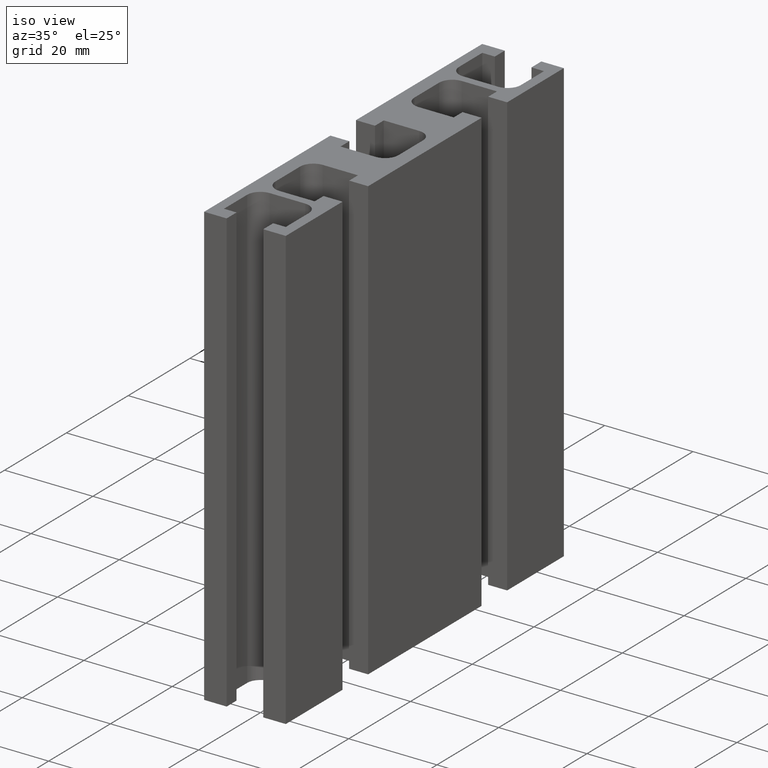
[diagram: clean part render]
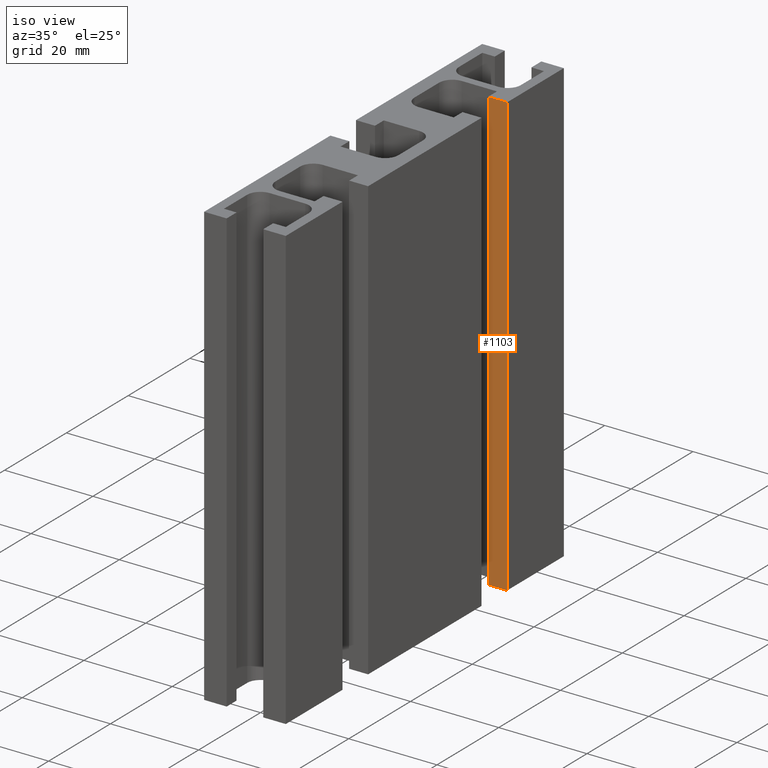
[diagram: same view with one face highlighted and labeled with its STEP entity id]
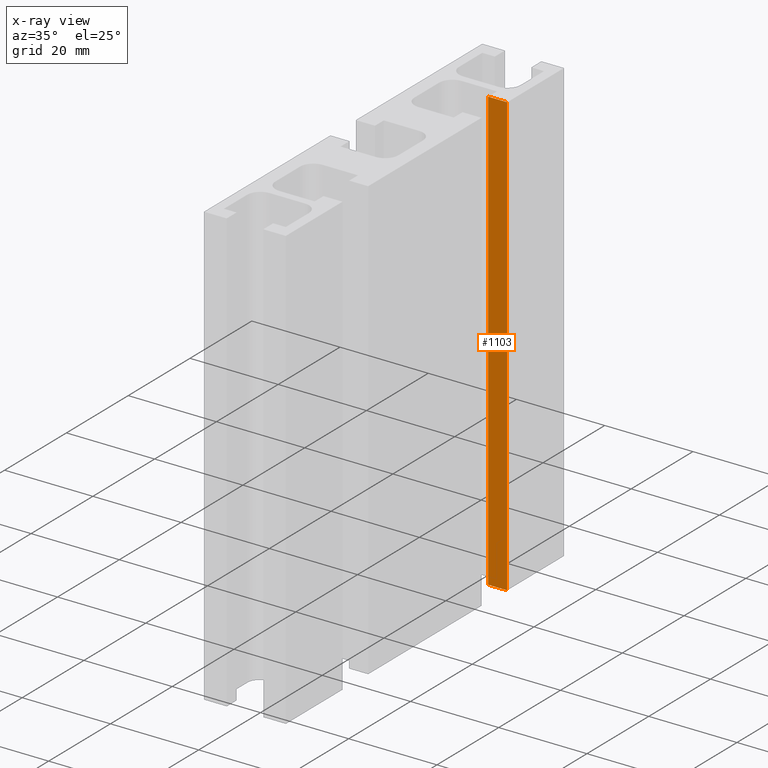
[diagram: x-ray of the same camera — body ghosted, the highlighted face saturated]
A machine part, iso view. The second image highlights one B-rep face of the part: STEP entity #1103.
The next image is the same camera in x-ray: the body ghosted, the highlighted face saturated — about 0% of this face is hidden behind the body in this view.
In plain terms, the highlighted planar face has unit normal (0, -1, 0).
Its self-contained STEP definition (entity closure, byte-faithful):
#67=FACE_OUTER_BOUND('',#123,.T.);
#123=EDGE_LOOP('',(#799,#800,#801,#802));
#215=LINE('',#1646,#357);
#216=LINE('',#1649,#358);
#217=LINE('',#1651,#359);
#218=LINE('',#1652,#360);
#357=VECTOR('',#1335,100.);
#358=VECTOR('',#1338,4.3);
#359=VECTOR('',#1339,4.3);
#360=VECTOR('',#1340,100.);
#485=VERTEX_POINT('',#1642);
#486=VERTEX_POINT('',#1644);
#487=VERTEX_POINT('',#1648);
#488=VERTEX_POINT('',#1650);
#615=EDGE_CURVE('',#485,#486,#215,.T.);
#616=EDGE_CURVE('',#485,#487,#216,.T.);
#617=EDGE_CURVE('',#488,#486,#217,.T.);
#618=EDGE_CURVE('',#487,#488,#218,.T.);
#799=ORIENTED_EDGE('',*,*,#616,.F.);
#800=ORIENTED_EDGE('',*,*,#615,.T.);
#801=ORIENTED_EDGE('',*,*,#617,.F.);
#802=ORIENTED_EDGE('',*,*,#618,.F.);
#1053=PLANE('',#1169);
#1103=ADVANCED_FACE('',(#67),#1053,.T.);
#1169=AXIS2_PLACEMENT_3D('',#1647,#1336,#1337);
#1335=DIRECTION('',(0.,0.,1.));
#1336=DIRECTION('center_axis',(0.,-1.,0.));
#1337=DIRECTION('ref_axis',(1.,0.,0.));
#1338=DIRECTION('',(-1.,0.,0.));
#1339=DIRECTION('',(1.,0.,0.));
#1340=DIRECTION('',(0.,0.,1.));
#1642=CARTESIAN_POINT('',(9.25000000000002,26.6500000000012,0.));
#1644=CARTESIAN_POINT('',(9.25000000000001,26.6500000000012,100.));
#1646=CARTESIAN_POINT('',(9.25000000000002,26.6500000000012,0.));
#1647=CARTESIAN_POINT('Origin',(4.95000000000002,26.6500000000012,0.));
#1648=CARTESIAN_POINT('',(4.95000000000002,26.6500000000012,0.));
#1649=CARTESIAN_POINT('',(9.25000000000002,26.6500000000012,0.));
#1650=CARTESIAN_POINT('',(4.95000000000002,26.6500000000012,100.));
#1651=CARTESIAN_POINT('',(7.00000000000004,26.6500000000012,100.));
#1652=CARTESIAN_POINT('',(4.95000000000002,26.6500000000012,0.));